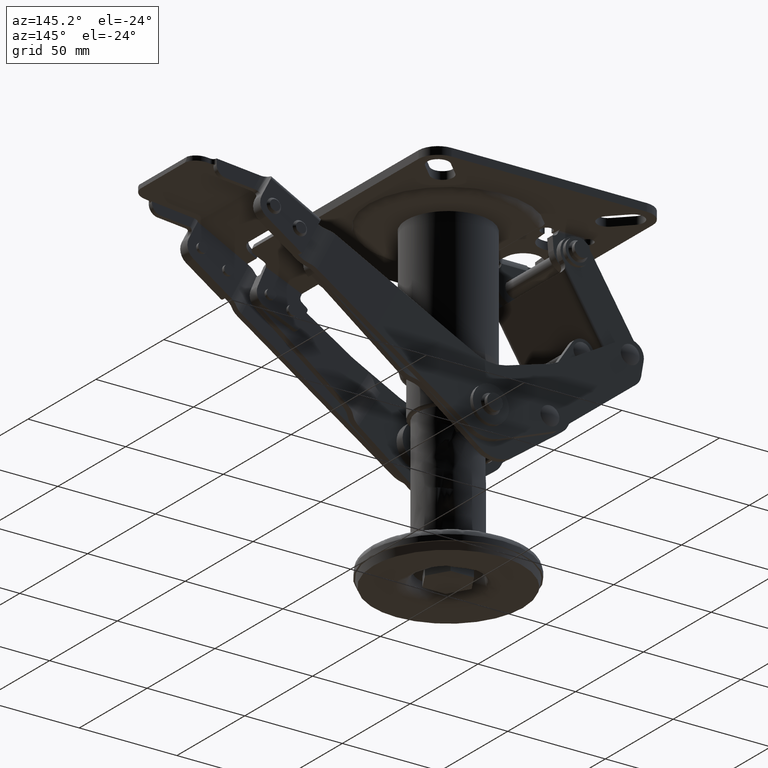
[diagram: clean part render]
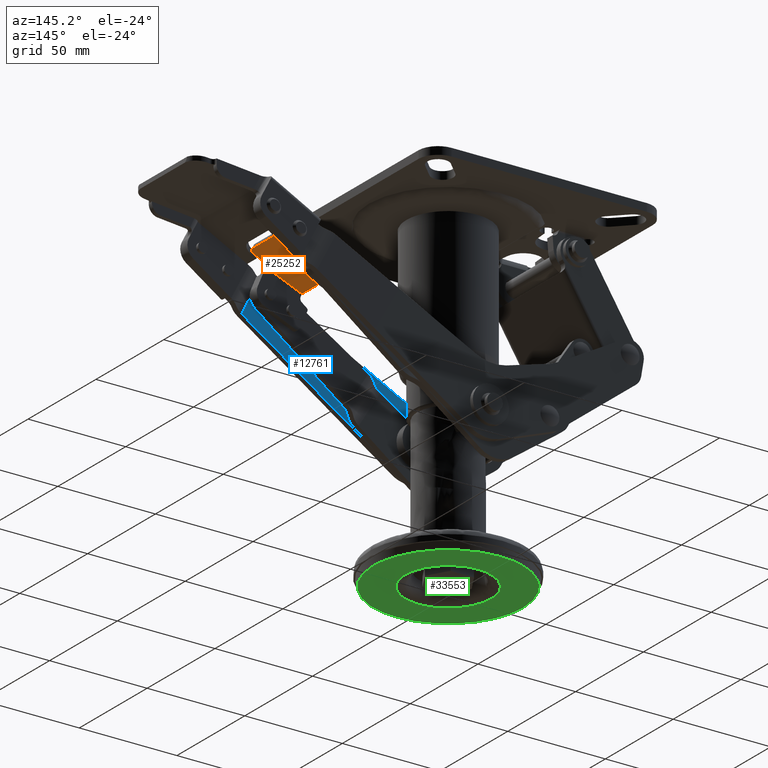
[diagram: same view with three faces highlighted in distinct colors, each labeled with its STEP entity id]
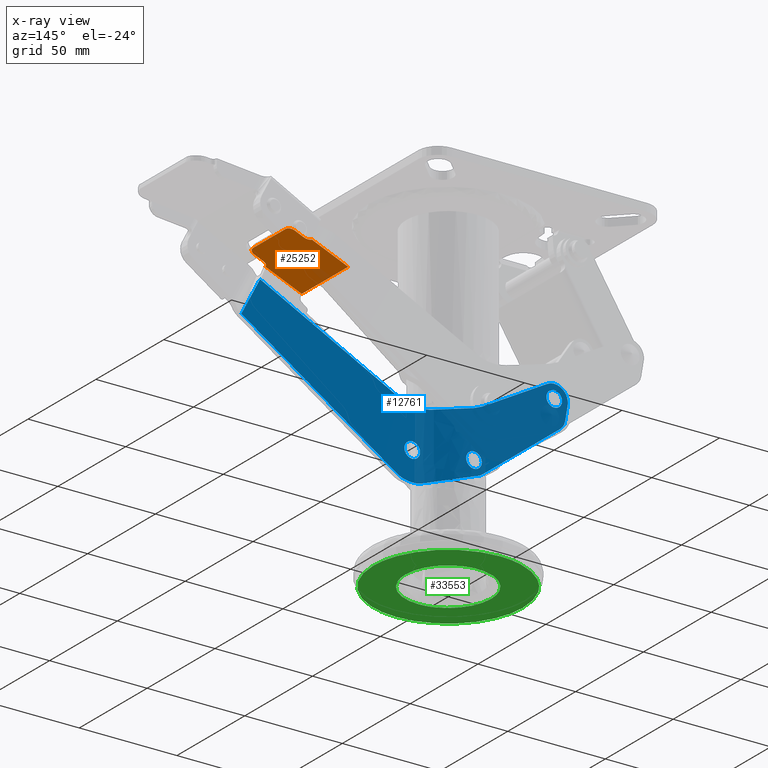
[diagram: x-ray of the same camera — body ghosted, the three highlighted faces saturated]
A machine part, auxiliary view with three faces highlighted in distinct colors.
The next image is the same camera in x-ray (body ghosted, the three faces saturated) — at least one of them is partly hidden behind the body in this view.
Their STEP definitions:

[orange] entity #25252 — the highlighted face is a freeform B-spline surface patch.
#22652=CARTESIAN_POINT('',(97.264095206969799,14.994999999999999,-22.718467740653750));
#22653=VERTEX_POINT('',#22652);
#22659=CARTESIAN_POINT('',(94.487977823076690,17.995000000000001,-23.855645066696098));
#22660=VERTEX_POINT('',#22659);
#22661=CARTESIAN_POINT('',(97.264095206969799,14.994999999999999,-22.718467740653750));
#22662=CARTESIAN_POINT('',(97.059695180966287,14.994979267690180,-22.802195855452581));
#22663=CARTESIAN_POINT('',(96.605435454998556,15.049385279657720,-22.988273671722840));
#22664=CARTESIAN_POINT('',(95.982427573743621,15.299656387463230,-23.243475573709890));
#22665=CARTESIAN_POINT('',(95.360543306367703,15.760651265437950,-23.498217211216119));
#22666=CARTESIAN_POINT('',(94.901467072684525,16.350206380108599,-23.686268007230058));
#22667=CARTESIAN_POINT('',(94.568476835379386,17.136072331092780,-23.822670361775550));
#22668=CARTESIAN_POINT('',(94.487825517130162,17.675915722012121,-23.855707455581221));
#22669=CARTESIAN_POINT('',(94.487977823076690,17.995000000000001,-23.855645066696098));
#22670=B_SPLINE_CURVE_WITH_KNOTS('',3,(#22661,#22662,#22663,#22664,#22665,#22666,#22667,#22668,#22669),.UNSPECIFIED.,.F.,.U.,(4,1,1,1,1,1,4),(0.000000498164373,0.662675685440780,1.472679556159552,2.135384398460633,3.092571371835574,3.755282542639293,4.712507233066354),.UNSPECIFIED.);
#22671=EDGE_CURVE('',#22653,#22660,#22670,.T.);
#22712=CARTESIAN_POINT('',(104.667069302272400,11.994999999999999,-19.685997163112251));
#22713=VERTEX_POINT('',#22712);
#22719=CARTESIAN_POINT('',(101.890951918373400,14.994999999999999,-20.823174489157100));
#22720=VERTEX_POINT('',#22719);
#22721=CARTESIAN_POINT('',(104.667069302272400,11.994999999999999,-19.685997163112251));
#22722=CARTESIAN_POINT('',(104.667353248245010,12.363189055026661,-19.685880850695540));
#22723=CARTESIAN_POINT('',(104.556969416284700,13.001132587181150,-19.731097235130779));
#22724=CARTESIAN_POINT('',(104.192191050063400,13.717103904401680,-19.880520919267479));
#22725=CARTESIAN_POINT('',(103.754271552967400,14.252301647621950,-20.059905308997820));
#22726=CARTESIAN_POINT('',(103.234211721136400,14.658600410887169,-20.272936736406351));
#22727=CARTESIAN_POINT('',(102.572296688395500,14.934434268555570,-20.544076123870688));
#22728=CARTESIAN_POINT('',(102.118070677337200,14.995053305723349,-20.730140129547639));
#22729=CARTESIAN_POINT('',(101.890951918373400,14.994999999999999,-20.823174489157100));
#22730=B_SPLINE_CURVE_WITH_KNOTS('',3,(#22721,#22722,#22723,#22724,#22725,#22726,#22727,#22728,#22729),.UNSPECIFIED.,.F.,.U.,(4,1,1,1,1,1,4),(0.000000498159747,1.104491225460009,1.914493231159970,2.429814584807910,3.239830067400359,3.976189734463318,4.712507233073490),.UNSPECIFIED.);
#22731=EDGE_CURVE('',#22713,#22720,#22730,.T.);
#22752=CARTESIAN_POINT('',(101.890951918373400,14.994999999999999,-20.823174489157100));
#22753=CARTESIAN_POINT('',(97.264095206969799,14.994999999999999,-22.718467740653750));
#22754=QUASI_UNIFORM_CURVE('',1,(#22752,#22753),.UNSPECIFIED.,.F.,.U.);
#22755=EDGE_CURVE('',#22720,#22653,#22754,.T.);
#22910=CARTESIAN_POINT('',(75.980594611312242,17.074999999999999,-31.436800199005930));
#22911=VERTEX_POINT('',#22910);
#22951=CARTESIAN_POINT('',(94.487977823076690,17.074999999999999,-23.855645066696049));
#22952=VERTEX_POINT('',#22951);
#22958=CARTESIAN_POINT('',(75.980594611312242,17.074999999999999,-31.436800199005930));
#22959=CARTESIAN_POINT('',(94.487977823076690,17.074999999999999,-23.855645066696049));
#22960=QUASI_UNIFORM_CURVE('',1,(#22958,#22959),.UNSPECIFIED.,.F.,.U.);
#22961=EDGE_CURVE('',#22911,#22952,#22960,.T.);
#24875=CARTESIAN_POINT('',(94.487977823076690,17.074999999999999,-23.855645066696049));
#24876=CARTESIAN_POINT('',(94.487977823076690,17.995000000000001,-23.855645066696098));
#24877=QUASI_UNIFORM_CURVE('',1,(#24875,#24876),.UNSPECIFIED.,.F.,.U.);
#24878=EDGE_CURVE('',#22952,#22660,#24877,.T.);
#25067=CARTESIAN_POINT('',(94.487977823076690,-17.995000000000001,-23.855645066696098));
#25068=VERTEX_POINT('',#25067);
#25074=CARTESIAN_POINT('',(97.264095206969799,-14.994999999999999,-22.718467740653750));
#25075=VERTEX_POINT('',#25074);
#25076=CARTESIAN_POINT('',(97.264095206969799,-14.994999999999999,-22.718467740653750));
#25077=CARTESIAN_POINT('',(97.059695180966287,-14.994979267690180,-22.802195855452581));
#25078=CARTESIAN_POINT('',(96.605435454998556,-15.049385279657720,-22.988273671722840));
#25079=CARTESIAN_POINT('',(95.982427573743621,-15.299656387463230,-23.243475573709890));
#25080=CARTESIAN_POINT('',(95.360543306367703,-15.760651265437950,-23.498217211216119));
#25081=CARTESIAN_POINT('',(94.901467072684525,-16.350206380108599,-23.686268007230058));
#25082=CARTESIAN_POINT('',(94.568476835379386,-17.136072331092780,-23.822670361775550));
#25083=CARTESIAN_POINT('',(94.487825517130162,-17.675915722012121,-23.855707455581221));
#25084=CARTESIAN_POINT('',(94.487977823076690,-17.995000000000001,-23.855645066696098));
#25085=B_SPLINE_CURVE_WITH_KNOTS('',3,(#25076,#25077,#25078,#25079,#25080,#25081,#25082,#25083,#25084),.UNSPECIFIED.,.F.,.U.,(4,1,1,1,1,1,4),(0.000000498164373,0.662675685440780,1.472679556159552,2.135384398460633,3.092571371835574,3.755282542639293,4.712507233066354),.UNSPECIFIED.);
#25086=EDGE_CURVE('',#25075,#25068,#25085,.T.);
#25126=CARTESIAN_POINT('',(101.890951918373400,-14.994999999999999,-20.823174489157100));
#25127=VERTEX_POINT('',#25126);
#25133=CARTESIAN_POINT('',(104.667069302272400,-11.994999999999999,-19.685997163112251));
#25134=VERTEX_POINT('',#25133);
#25135=CARTESIAN_POINT('',(104.667069302272400,-11.994999999999999,-19.685997163112251));
#25136=CARTESIAN_POINT('',(104.667353248245010,-12.363189055026661,-19.685880850695540));
#25137=CARTESIAN_POINT('',(104.556969416284700,-13.001132587181150,-19.731097235130779));
#25138=CARTESIAN_POINT('',(104.192191050063400,-13.717103904401680,-19.880520919267479));
#25139=CARTESIAN_POINT('',(103.754271552967400,-14.252301647621950,-20.059905308997820));
#25140=CARTESIAN_POINT('',(103.234211721136400,-14.658600410887169,-20.272936736406351));
#25141=CARTESIAN_POINT('',(102.572296688395500,-14.934434268555570,-20.544076123870688));
#25142=CARTESIAN_POINT('',(102.118070677337200,-14.995053305723349,-20.730140129547639));
#25143=CARTESIAN_POINT('',(101.890951918373400,-14.994999999999999,-20.823174489157100));
#25144=B_SPLINE_CURVE_WITH_KNOTS('',3,(#25135,#25136,#25137,#25138,#25139,#25140,#25141,#25142,#25143),.UNSPECIFIED.,.F.,.U.,(4,1,1,1,1,1,4),(0.000000498159747,1.104491225460009,1.914493231159970,2.429814584807910,3.239830067400359,3.976189734463318,4.712507233073490),.UNSPECIFIED.);
#25145=EDGE_CURVE('',#25134,#25127,#25144,.T.);
#25166=CARTESIAN_POINT('',(101.890951918373400,-14.994999999999999,-20.823174489157100));
#25167=CARTESIAN_POINT('',(97.264095206969799,-14.994999999999999,-22.718467740653750));
#25168=QUASI_UNIFORM_CURVE('',1,(#25166,#25167),.UNSPECIFIED.,.F.,.U.);
#25169=EDGE_CURVE('',#25127,#25075,#25168,.T.);
#25208=CARTESIAN_POINT('',(104.667069302272400,11.994999999999999,-19.685997163112251));
#25209=CARTESIAN_POINT('',(104.667069302272400,-11.994999999999999,-19.685997163112251));
#25210=QUASI_UNIFORM_CURVE('',1,(#25208,#25209),.UNSPECIFIED.,.F.,.U.);
#25211=EDGE_CURVE('',#22713,#25134,#25210,.T.);
#25217=CARTESIAN_POINT('',(106.099958221398000,-19.792701443789500,-19.099044752878889));
#25218=CARTESIAN_POINT('',(74.547702357984790,-19.792701443789500,-32.023753975024107));
#25219=CARTESIAN_POINT('',(106.099958221398000,19.792701443789500,-19.099044752878889));
#25220=CARTESIAN_POINT('',(74.547702357984790,19.792701443789500,-32.023753975024107));
#25221=B_SPLINE_SURFACE_WITH_KNOTS('',1,1,((#25217,#25219),(#25218,#25220)),.UNSPECIFIED.,.F.,.F.,.U.,(2,2),(2,2),(0.0,34.096817425491437),(0.0,39.585402887579008),.UNSPECIFIED.);
#25222=ORIENTED_EDGE('',*,*,#25211,.T.);
#25223=ORIENTED_EDGE('',*,*,#25145,.T.);
#25224=ORIENTED_EDGE('',*,*,#25169,.T.);
#25225=ORIENTED_EDGE('',*,*,#25086,.T.);
#25226=CARTESIAN_POINT('',(94.487977823076690,-17.074999999999999,-23.855645066696049));
#25227=VERTEX_POINT('',#25226);
#25228=CARTESIAN_POINT('',(94.487977823076690,-17.074999999999999,-23.855645066696049));
#25229=CARTESIAN_POINT('',(94.487977823076690,-17.995000000000001,-23.855645066696098));
#25230=QUASI_UNIFORM_CURVE('',1,(#25228,#25229),.UNSPECIFIED.,.F.,.U.);
#25231=EDGE_CURVE('',#25227,#25068,#25230,.T.);
#25232=ORIENTED_EDGE('',*,*,#25231,.F.);
#25233=CARTESIAN_POINT('',(75.980594611312242,-17.074999999999999,-31.436800199005930));
#25234=VERTEX_POINT('',#25233);
#25235=CARTESIAN_POINT('',(75.980594611312242,-17.074999999999999,-31.436800199005930));
#25236=CARTESIAN_POINT('',(94.487977823076690,-17.074999999999999,-23.855645066696049));
#25237=QUASI_UNIFORM_CURVE('',1,(#25235,#25236),.UNSPECIFIED.,.F.,.U.);
#25238=EDGE_CURVE('',#25234,#25227,#25237,.T.);
#25239=ORIENTED_EDGE('',*,*,#25238,.F.);
#25240=CARTESIAN_POINT('',(75.980594611312242,17.074999999999999,-31.436800199005930));
#25241=CARTESIAN_POINT('',(75.980594611312242,-17.074999999999999,-31.436800199005930));
#25242=QUASI_UNIFORM_CURVE('',1,(#25240,#25241),.UNSPECIFIED.,.F.,.U.);
#25243=EDGE_CURVE('',#22911,#25234,#25242,.T.);
#25244=ORIENTED_EDGE('',*,*,#25243,.F.);
#25245=ORIENTED_EDGE('',*,*,#22961,.T.);
#25246=ORIENTED_EDGE('',*,*,#24878,.T.);
#25247=ORIENTED_EDGE('',*,*,#22671,.F.);
#25248=ORIENTED_EDGE('',*,*,#22755,.F.);
#25249=ORIENTED_EDGE('',*,*,#22731,.F.);
#25250=EDGE_LOOP('',(#25222,#25223,#25224,#25225,#25232,#25239,#25244,#25245,#25246,#25247,#25248,#25249));
#25251=FACE_OUTER_BOUND('',#25250,.T.);
#25252=ADVANCED_FACE('',(#25251),#25221,.T.);

[blue] entity #12761 — the highlighted face is a freeform B-spline surface patch.
#1825=CARTESIAN_POINT('',(-28.766206347659629,-26.500000000000000,-91.208847302878070));
#1826=VERTEX_POINT('',#1825);
#1832=CARTESIAN_POINT('',(-27.619207169565762,-26.500000000000000,-94.012488101669973));
#1833=VERTEX_POINT('',#1832);
#1834=CARTESIAN_POINT('',(-28.766206347659629,-26.500000000000000,-91.208847302878070));
#1835=CARTESIAN_POINT('',(-28.425625737050911,-26.500000000000039,-91.554831019105961));
#1836=CARTESIAN_POINT('',(-27.836564631500028,-26.499999999999901,-92.427347838237296));
#1837=CARTESIAN_POINT('',(-27.618484889424590,-26.500000000000050,-93.462233009890824));
#1838=CARTESIAN_POINT('',(-27.619207169565762,-26.500000000000000,-94.012488101669973));
#1839=B_SPLINE_CURVE_WITH_KNOTS('',3,(#1834,#1835,#1836,#1837,#1838),.UNSPECIFIED.,.F.,.U.,(4,1,4),(0.000000094678687,1.456320263138075,3.106766467448271),.UNSPECIFIED.);
#1840=EDGE_CURVE('',#1826,#1833,#1839,.T.);
#1842=CARTESIAN_POINT('',(-31.619207169563001,-26.500000000000000,-98.012483827771533));
#1843=VERTEX_POINT('',#1842);
#1844=CARTESIAN_POINT('',(-27.619207169565762,-26.500000000000000,-94.012488101669973));
#1845=CARTESIAN_POINT('',(-27.619127664990220,-26.499999999999979,-94.372449042138854));
#1846=CARTESIAN_POINT('',(-27.730187478268260,-26.500000000000011,-95.190628588056583));
#1847=CARTESIAN_POINT('',(-28.255464844478361,-26.500000000000000,-96.301415322119880));
#1848=CARTESIAN_POINT('',(-29.145219870700970,-26.500000000000039,-97.235835978917606));
#1849=CARTESIAN_POINT('',(-30.277655943040681,-26.499999999999691,-97.859046522410111));
#1850=CARTESIAN_POINT('',(-31.161017466523909,-26.500000000000220,-98.012783762733349));
#1851=CARTESIAN_POINT('',(-31.619207169563001,-26.500000000000000,-98.012483827771533));
#1852=B_SPLINE_CURVE_WITH_KNOTS('',3,(#1844,#1845,#1846,#1847,#1848,#1849,#1850,#1851),.UNSPECIFIED.,.F.,.U.,(4,1,1,1,1,4),(0.000000418352396,1.079919872330230,2.454485553052767,3.632546585935487,4.908862546651442,6.283340568467245),.UNSPECIFIED.);
#1853=EDGE_CURVE('',#1833,#1843,#1852,.T.);
#1855=CARTESIAN_POINT('',(-35.619207169560227,-26.500000000000000,-94.012479553874030));
#1856=VERTEX_POINT('',#1855);
#1857=CARTESIAN_POINT('',(-31.619207169563001,-26.500000000000000,-98.012483827771533));
#1858=CARTESIAN_POINT('',(-31.979178706468279,-26.500000000000011,-98.012588500201659));
#1859=CARTESIAN_POINT('',(-32.731835482924510,-26.500000000000028,-97.910271437930447));
#1860=CARTESIAN_POINT('',(-33.729826027571363,-26.499999999999929,-97.467935078459561));
#1861=CARTESIAN_POINT('',(-34.545430605614882,-26.500000000000160,-96.798495545239462));
#1862=CARTESIAN_POINT('',(-35.134689577142893,-26.499999999999929,-96.004000543368093));
#1863=CARTESIAN_POINT('',(-35.525796499622011,-26.499999999999961,-95.059616326568701));
#1864=CARTESIAN_POINT('',(-35.619335533709489,-26.500000000000011,-94.372461469910206));
#1865=CARTESIAN_POINT('',(-35.619207169560227,-26.500000000000000,-94.012479553874030));
#1866=B_SPLINE_CURVE_WITH_KNOTS('',3,(#1857,#1858,#1859,#1860,#1861,#1862,#1863,#1864,#1865),.UNSPECIFIED.,.F.,.U.,(4,1,1,1,1,1,4),(0.000000412508236,1.079920695181849,2.258091253484733,3.239792636255949,4.221593183821381,5.203425104538209,6.283345386266682),.UNSPECIFIED.);
#1867=EDGE_CURVE('',#1843,#1856,#1866,.T.);
#1869=CARTESIAN_POINT('',(-34.422845183937532,-26.500000000000000,-91.159481473962387));
#1870=VERTEX_POINT('',#1869);
#1871=CARTESIAN_POINT('',(-35.619207169560227,-26.500000000000000,-94.012479553874030));
#1872=CARTESIAN_POINT('',(-35.619644264395092,-26.500000000000060,-93.516087100579796));
#1873=CARTESIAN_POINT('',(-35.419497067566347,-26.499999999999950,-92.457604319470619));
#1874=CARTESIAN_POINT('',(-34.824629748915427,-26.500000000000039,-91.553313078742633));
#1875=CARTESIAN_POINT('',(-34.422845183937532,-26.500000000000000,-91.159481473962387));
#1876=B_SPLINE_CURVE_WITH_KNOTS('',3,(#1871,#1872,#1873,#1874,#1875),.UNSPECIFIED.,.F.,.U.,(4,1,4),(0.000000105719107,1.489045353038137,3.176576587440371),.UNSPECIFIED.);
#1877=EDGE_CURVE('',#1856,#1870,#1876,.T.);
#1958=CARTESIAN_POINT('',(-31.619207169563001,-26.500000000000000,-90.012483827772499));
#1959=VERTEX_POINT('',#1958);
#1960=CARTESIAN_POINT('',(-34.422845183937532,-26.500000000000000,-91.159481473962387));
#1961=CARTESIAN_POINT('',(-34.169001716365131,-26.500000000000011,-90.909914695535505));
#1962=CARTESIAN_POINT('',(-33.568032576530896,-26.500000000000021,-90.459563361443614));
#1963=CARTESIAN_POINT('',(-32.590078113962392,-26.499999999999929,-90.086899513160347));
#1964=CARTESIAN_POINT('',(-31.910455185401229,-26.500000000000060,-90.012462984657333));
#1965=CARTESIAN_POINT('',(-31.619207169563001,-26.500000000000000,-90.012483827772499));
#1966=B_SPLINE_CURVE_WITH_KNOTS('',3,(#1960,#1961,#1962,#1963,#1964,#1965),.UNSPECIFIED.,.F.,.U.,(4,1,1,4),(0.000000094580631,1.067953605998455,2.232980530301140,3.106763011628496),.UNSPECIFIED.);
#1967=EDGE_CURVE('',#1870,#1959,#1966,.T.);
#1969=CARTESIAN_POINT('',(-31.619207169563001,-26.500000000000000,-90.012483827772499));
#1970=CARTESIAN_POINT('',(-31.255219179579861,-26.500000000000000,-90.012357223541130));
#1971=CARTESIAN_POINT('',(-30.560429048606689,-26.500000000000000,-90.107979363193891));
#1972=CARTESIAN_POINT('',(-29.576418085117790,-26.500000000000039,-90.520588584073096));
#1973=CARTESIAN_POINT('',(-29.021249155480302,-26.500000000000021,-90.949161103259314));
#1974=CARTESIAN_POINT('',(-28.766206347659629,-26.500000000000000,-91.208847302878070));
#1975=B_SPLINE_CURVE_WITH_KNOTS('',3,(#1969,#1970,#1971,#1972,#1973,#1974),.UNSPECIFIED.,.F.,.U.,(4,1,1,4),(0.000000105614514,1.091953482553900,2.084626625093381,3.176580001917617),.UNSPECIFIED.);
#1976=EDGE_CURVE('',#1959,#1826,#1975,.T.);
#2004=CARTESIAN_POINT('',(-75.592776552613714,-26.500000000706422,-58.192644713061341));
#2005=VERTEX_POINT('',#2004);
#2006=CARTESIAN_POINT('',(-76.739775733253339,-26.500000000000000,-55.389003911678813));
#2007=VERTEX_POINT('',#2006);
#2008=CARTESIAN_POINT('',(-75.592776552613714,-26.500000000706422,-58.192644713061341));
#2009=CARTESIAN_POINT('',(-75.887853034049812,-26.500000000630848,-57.892720886147629));
#2010=CARTESIAN_POINT('',(-76.286660951649637,-26.500000000489589,-57.332065160369233));
#2011=CARTESIAN_POINT('',(-76.657143160944656,-26.500000000244619,-56.359785083747610));
#2012=CARTESIAN_POINT('',(-76.739879471099798,-26.500000000089710,-55.744990534917150));
#2013=CARTESIAN_POINT('',(-76.739775733253339,-26.500000000000000,-55.389003911678813));
#2014=B_SPLINE_CURVE_WITH_KNOTS('',3,(#2008,#2009,#2010,#2011,#2012,#2013),.UNSPECIFIED.,.F.,.U.,(4,1,1,4),(0.000000094680610,1.262150513280998,2.038811770494700,3.106766471080650),.UNSPECIFIED.);
#2015=EDGE_CURVE('',#2005,#2007,#2014,.T.);
#2017=CARTESIAN_POINT('',(-72.739775733256096,-26.500000000000000,-51.389008185577261));
#2018=VERTEX_POINT('',#2017);
#2019=CARTESIAN_POINT('',(-76.739775733253339,-26.500000000000000,-55.389003911678813));
#2020=CARTESIAN_POINT('',(-76.740261583381809,-26.500000000000000,-54.865327915940057));
#2021=CARTESIAN_POINT('',(-76.563757836333252,-26.500000000000011,-53.982193230830383));
#2022=CARTESIAN_POINT('',(-75.948321676737123,-26.500000000000000,-52.926518010748303));
#2023=CARTESIAN_POINT('',(-75.318788981612883,-26.499999999999950,-52.297094746450860));
#2024=CARTESIAN_POINT('',(-74.609392439605500,-26.500000000000149,-51.823081794141068));
#2025=CARTESIAN_POINT('',(-73.786923429317582,-26.499999999999812,-51.482412497561441));
#2026=CARTESIAN_POINT('',(-73.099754624774064,-26.499999999999961,-51.388881337959383));
#2027=CARTESIAN_POINT('',(-72.739775733256096,-26.500000000000000,-51.389008185577261));
#2028=B_SPLINE_CURVE_WITH_KNOTS('',3,(#2019,#2020,#2021,#2022,#2023,#2024,#2025,#2026,#2027),.UNSPECIFIED.,.F.,.U.,(4,1,1,1,1,1,4),(0.000000418341539,1.570835456219200,2.650794408622774,3.632546585929382,4.221589945621111,5.203421113541586,6.283340568467391),.UNSPECIFIED.);
#2029=EDGE_CURVE('',#2007,#2018,#2028,.T.);
#2031=CARTESIAN_POINT('',(-68.739775733258853,-26.500000000000000,-55.389012459474749));
#2032=VERTEX_POINT('',#2031);
#2033=CARTESIAN_POINT('',(-72.739775733256096,-26.500000000000000,-51.389008185577261));
#2034=CARTESIAN_POINT('',(-72.216121368080579,-26.500000000000000,-51.388466114660950));
#2035=CARTESIAN_POINT('',(-71.267444295495295,-26.500000000000028,-51.578087619832907));
#2036=CARTESIAN_POINT('',(-70.054048051194599,-26.500000000000050,-52.325637970904097));
#2037=CARTESIAN_POINT('',(-69.274582802408432,-26.499999999999879,-53.275578274224827));
#2038=CARTESIAN_POINT('',(-68.833208054148628,-26.499999999999929,-54.341884293158152));
#2039=CARTESIAN_POINT('',(-68.739647134855815,-26.500000000000082,-55.029034163310669));
#2040=CARTESIAN_POINT('',(-68.739775733258853,-26.500000000000000,-55.389012459474749));
#2041=B_SPLINE_CURVE_WITH_KNOTS('',3,(#2033,#2034,#2035,#2036,#2037,#2038,#2039,#2040),.UNSPECIFIED.,.F.,.U.,(4,1,1,1,1,4),(0.000000412496535,1.570836655592872,2.847214610808964,4.221593183819590,5.203425104537856,6.283345386266730),.UNSPECIFIED.);
#2042=EDGE_CURVE('',#2018,#2032,#2041,.T.);
#2044=CARTESIAN_POINT('',(-69.936137716291412,-26.499999999300471,-58.242010536841100));
#2045=VERTEX_POINT('',#2044);
#2046=CARTESIAN_POINT('',(-68.739775733258853,-26.500000000000000,-55.389012459474749));
#2047=CARTESIAN_POINT('',(-68.739060130839462,-26.499999999862109,-55.951626873948207));
#2048=CARTESIAN_POINT('',(-68.967104456846229,-26.499999999602529,-57.009738590167387));
#2049=CARTESIAN_POINT('',(-69.581777652922881,-26.499999999385761,-57.894396687125379));
#2050=CARTESIAN_POINT('',(-69.936137716291412,-26.499999999300471,-58.242010536841100));
#2051=B_SPLINE_CURVE_WITH_KNOTS('',3,(#2046,#2047,#2048,#2049,#2050),.UNSPECIFIED.,.F.,.U.,(4,1,4),(0.000000105719514,1.687531338189897,3.176576583808684),.UNSPECIFIED.);
#2052=EDGE_CURVE('',#2032,#2045,#2051,.T.);
#2132=CARTESIAN_POINT('',(-72.739775733256096,-26.500000000000000,-59.389008185576337));
#2133=VERTEX_POINT('',#2132);
#2134=CARTESIAN_POINT('',(-72.739775733256096,-26.500000000000000,-59.389008185576337));
#2135=CARTESIAN_POINT('',(-73.302386783862033,-26.500000000139298,-59.389716908285934));
#2136=CARTESIAN_POINT('',(-74.360507924756888,-26.500000000401300,-59.161686966348427));
#2137=CARTESIAN_POINT('',(-75.245161651513399,-26.500000000620339,-58.547002015219938));
#2138=CARTESIAN_POINT('',(-75.592776552613714,-26.500000000706422,-58.192644713061341));
#2139=B_SPLINE_CURVE_WITH_KNOTS('',3,(#2134,#2135,#2136,#2137,#2138),.UNSPECIFIED.,.F.,.U.,(4,1,4),(0.000000105616872,1.687533151992051,3.176579998285250),.UNSPECIFIED.);
#2140=EDGE_CURVE('',#2133,#2005,#2139,.T.);
#2163=CARTESIAN_POINT('',(-69.936137716291412,-26.499999999300471,-58.242010536841100));
#2164=CARTESIAN_POINT('',(-70.282125699300565,-26.499999999386791,-58.582574515396907));
#2165=CARTESIAN_POINT('',(-71.154615090446782,-26.499999999604562,-59.171726533297580));
#2166=CARTESIAN_POINT('',(-72.189536471332303,-26.499999999862709,-59.389663467657122));
#2167=CARTESIAN_POINT('',(-72.739775733256096,-26.500000000000000,-59.389008185576337));
#2168=B_SPLINE_CURVE_WITH_KNOTS('',3,(#2163,#2164,#2165,#2166,#2167),.UNSPECIFIED.,.F.,.U.,(4,1,4),(0.000000094581190,1.456318644791350,3.106763015260222),.UNSPECIFIED.);
#2169=EDGE_CURVE('',#2045,#2133,#2168,.T.);
#2413=CARTESIAN_POINT('',(2.853000214058184,-26.500000000000000,-94.596358088353696));
#2414=VERTEX_POINT('',#2413);
#2420=CARTESIAN_POINT('',(3.999996999997717,-26.500000000000000,-97.399989726105218));
#2421=VERTEX_POINT('',#2420);
#2422=CARTESIAN_POINT('',(3.999996999997717,-26.500000000000000,-97.399989726105218));
#2423=CARTESIAN_POINT('',(4.000037528699167,-26.500000000000021,-97.108737791270741));
#2424=CARTESIAN_POINT('',(3.932569942595097,-26.499999999999950,-96.493891533029625));
#2425=CARTESIAN_POINT('',(3.584989191539200,-26.500000000000071,-95.510289013086492));
#2426=CARTESIAN_POINT('',(3.148017209825256,-26.499999999999940,-94.896306050113367));
#2427=CARTESIAN_POINT('',(2.853000214058184,-26.500000000000000,-94.596358088353696));
#2428=B_SPLINE_CURVE_WITH_KNOTS('',3,(#2422,#2423,#2424,#2425,#2426,#2427),.UNSPECIFIED.,.F.,.U.,(4,1,1,4),(0.000000094680916,0.873780718499388,1.844610077153936,3.106756407346604),.UNSPECIFIED.);
#2429=EDGE_CURVE('',#2421,#2414,#2428,.T.);
#2431=CARTESIAN_POINT('',(0.0,-26.500000000000000,-101.399991000000000));
#2432=VERTEX_POINT('',#2431);
#2433=CARTESIAN_POINT('',(0.0,-26.500000000000000,-101.399991000000000));
#2434=CARTESIAN_POINT('',(0.523692395154120,-26.500000000000021,-101.400576184380700));
#2435=CARTESIAN_POINT('',(1.406812880384081,-26.499999999999961,-101.223895598413190));
#2436=CARTESIAN_POINT('',(2.405362026140882,-26.500000000000060,-100.641787239932200));
#2437=CARTESIAN_POINT('',(3.048312999275747,-26.499999999999929,-100.029536042209000));
#2438=CARTESIAN_POINT('',(3.578657807053631,-26.500000000000050,-99.276837717217248));
#2439=CARTESIAN_POINT('',(3.923862503700090,-26.499999999999861,-98.381767472705022));
#2440=CARTESIAN_POINT('',(4.000026709813680,-26.500000000000011,-97.694505655239325));
#2441=CARTESIAN_POINT('',(3.999996999997717,-26.500000000000000,-97.399989726105218));
#2442=B_SPLINE_CURVE_WITH_KNOTS('',3,(#2433,#2434,#2435,#2436,#2437,#2438,#2439,#2440,#2441),.UNSPECIFIED.,.F.,.U.,(4,1,1,1,1,1,4),(0.000000412506493,1.570835477472371,2.650794443364687,3.436128614565740,4.221590017626973,5.399759691581598,6.283340673758381),.UNSPECIFIED.);
#2443=EDGE_CURVE('',#2432,#2421,#2442,.T.);
#2445=CARTESIAN_POINT('',(-3.999996999997717,-26.500000000000000,-97.399998273894738));
#2446=VERTEX_POINT('',#2445);
#2447=CARTESIAN_POINT('',(-3.999996999997717,-26.500000000000000,-97.399998273894738));
#2448=CARTESIAN_POINT('',(-4.000124617929980,-26.499999999999950,-97.759978009956612));
#2449=CARTESIAN_POINT('',(-3.906564748223784,-26.500000000000089,-98.447121806942789));
#2450=CARTESIAN_POINT('',(-3.465188971929435,-26.500000000000000,-99.513429638202794));
#2451=CARTESIAN_POINT('',(-2.685730121712000,-26.499999999999918,-100.463369255972490));
#2452=CARTESIAN_POINT('',(-1.472323619706103,-26.500000000000089,-101.210913017865100));
#2453=CARTESIAN_POINT('',(-0.523656887202373,-26.499999999999989,-101.400532588877500));
#2454=CARTESIAN_POINT('',(0.0,-26.500000000000000,-101.399991000000000));
#2455=B_SPLINE_CURVE_WITH_KNOTS('',3,(#2447,#2448,#2449,#2450,#2451,#2452,#2453,#2454),.UNSPECIFIED.,.F.,.U.,(4,1,1,1,1,4),(0.000000418342730,1.079919062382007,2.061749494164688,3.436125975266754,4.712501994343722,6.283335855962778),.UNSPECIFIED.);
#2456=EDGE_CURVE('',#2446,#2432,#2455,.T.);
#2458=CARTESIAN_POINT('',(-2.803634422108144,-26.500000000000000,-94.546995317789111));
#2459=VERTEX_POINT('',#2458);
#2460=CARTESIAN_POINT('',(-2.803634422108144,-26.500000000000000,-94.546995317789111));
#2461=CARTESIAN_POINT('',(-3.158012798127994,-26.500000000000071,-94.894602003462026));
#2462=CARTESIAN_POINT('',(-3.772586470027117,-26.499999999999869,-95.779296537812016));
#2463=CARTESIAN_POINT('',(-4.000785939110791,-26.500000000000121,-96.837364971866037));
#2464=CARTESIAN_POINT('',(-3.999996999997717,-26.500000000000000,-97.399998273894738));
#2465=B_SPLINE_CURVE_WITH_KNOTS('',3,(#2460,#2461,#2462,#2463,#2464),.UNSPECIFIED.,.F.,.U.,(4,1,4),(0.000000105722521,1.489047840563404,3.176581893788483),.UNSPECIFIED.);
#2466=EDGE_CURVE('',#2459,#2446,#2465,.T.);
#2549=CARTESIAN_POINT('',(0.0,-26.500000000000000,-93.399996999999999));
#2550=VERTEX_POINT('',#2549);
#2551=CARTESIAN_POINT('',(0.0,-26.500000000000000,-93.399996999999999));
#2552=CARTESIAN_POINT('',(-0.550255164737202,-26.499999999999950,-93.399275806579183));
#2553=CARTESIAN_POINT('',(-1.585132918516385,-26.500000000000089,-93.617354137996159));
#2554=CARTESIAN_POINT('',(-2.457655248837352,-26.499999999999961,-94.206417108744986));
#2555=CARTESIAN_POINT('',(-2.803634422108144,-26.500000000000000,-94.546995317789111));
#2556=B_SPLINE_CURVE_WITH_KNOTS('',3,(#2551,#2552,#2553,#2554,#2555),.UNSPECIFIED.,.F.,.U.,(4,1,4),(0.000000094579580,1.650442790486460,3.106759863082636),.UNSPECIFIED.);
#2557=EDGE_CURVE('',#2550,#2459,#2556,.T.);
#2559=CARTESIAN_POINT('',(2.853000214058184,-26.500000000000000,-94.596358088353696));
#2560=CARTESIAN_POINT('',(2.459168647921223,-26.500000000000011,-94.194574044480788));
#2561=CARTESIAN_POINT('',(1.554876533335513,-26.500000000000021,-93.599705690930975));
#2562=CARTESIAN_POINT('',(0.496392373455567,-26.499999999999940,-93.399559450695762));
#2563=CARTESIAN_POINT('',(0.0,-26.500000000000000,-93.399996999999999));
#2564=B_SPLINE_CURVE_WITH_KNOTS('',3,(#2559,#2560,#2561,#2562,#2563),.UNSPECIFIED.,.F.,.U.,(4,1,4),(0.000000105616516,1.687532345006936,3.176578479232563),.UNSPECIFIED.);
#2565=EDGE_CURVE('',#2414,#2550,#2564,.T.);
#11936=CARTESIAN_POINT('',(77.957507396601201,-26.500000000000000,-38.540599394977498));
#11937=VERTEX_POINT('',#11936);
#11962=CARTESIAN_POINT('',(87.513095883884702,-26.500000000000000,-56.838427067744597));
#11963=VERTEX_POINT('',#11962);
#11971=CARTESIAN_POINT('',(77.957507396601201,-26.500000000000000,-38.540599394977498));
#11972=CARTESIAN_POINT('',(87.513095883884702,-26.500000000000000,-56.838427067744597));
#11973=QUASI_UNIFORM_CURVE('',1,(#11971,#11972),.UNSPECIFIED.,.F.,.U.);
#11974=EDGE_CURVE('',#11937,#11963,#11973,.T.);
#12266=CARTESIAN_POINT('',(-35.916082887474403,-26.500000000000000,-99.538508540494206));
#12267=VERTEX_POINT('',#12266);
#12273=CARTESIAN_POINT('',(-34.091929999999998,-26.500000000000000,-100.561329000000000));
#12274=VERTEX_POINT('',#12273);
#12275=CARTESIAN_POINT('',(-35.916082887474403,-26.500000000000000,-99.538508540494206));
#12276=CARTESIAN_POINT('',(-35.363823069482663,-26.499999999999979,-99.968231902416505));
#12277=CARTESIAN_POINT('',(-34.746659379672337,-26.500000000000050,-100.314361615611200));
#12278=CARTESIAN_POINT('',(-34.091929999999998,-26.500000000000000,-100.561329000000000));
#12279=B_SPLINE_CURVE_WITH_KNOTS('',3,(#12275,#12276,#12277,#12278),.UNSPECIFIED.,.F.,.U.,(4,4),(9.783498E-009,2.099231881581437),.UNSPECIFIED.);
#12280=EDGE_CURVE('',#12267,#12274,#12279,.T.);
#12302=CARTESIAN_POINT('',(-75.758461491749003,-26.500000000000000,-68.477507018356604));
#12303=VERTEX_POINT('',#12302);
#12309=CARTESIAN_POINT('',(-75.758461491749003,-26.500000000000000,-68.477507018356604));
#12310=CARTESIAN_POINT('',(-35.916082887474403,-26.500000000000000,-99.538508540494206));
#12311=QUASI_UNIFORM_CURVE('',1,(#12309,#12310),.UNSPECIFIED.,.F.,.U.);
#12312=EDGE_CURVE('',#12303,#12267,#12311,.T.);
#12343=CARTESIAN_POINT('',(-78.355420019964285,-26.500000000000000,-64.129584882474305));
#12344=VERTEX_POINT('',#12343);
#12350=CARTESIAN_POINT('',(-78.355420019964285,-26.500000000000000,-64.129584882474305));
#12351=CARTESIAN_POINT('',(-78.274117603581630,-26.499999999999979,-64.608543822587706));
#12352=CARTESIAN_POINT('',(-77.996653479724060,-26.500000000000050,-65.601685577624778));
#12353=CARTESIAN_POINT('',(-77.175120469758753,-26.499999999999929,-67.134305108734296));
#12354=CARTESIAN_POINT('',(-76.312045585348557,-26.500000000000089,-68.046238688501845));
#12355=CARTESIAN_POINT('',(-75.758461491749003,-26.500000000000000,-68.477507018356604));
#12356=B_SPLINE_CURVE_WITH_KNOTS('',3,(#12350,#12351,#12352,#12353,#12354,#12355),.UNSPECIFIED.,.F.,.U.,(4,1,1,4),(0.000000030997393,1.457462923863167,3.076865071732427,5.182090099489219),.UNSPECIFIED.);
#12357=EDGE_CURVE('',#12344,#12303,#12356,.T.);
#12375=CARTESIAN_POINT('',(-79.641049957649400,-26.500000000000000,-56.561333249309712));
#12376=VERTEX_POINT('',#12375);
#12382=CARTESIAN_POINT('',(-79.641049957649400,-26.500000000000000,-56.561333249309712));
#12383=CARTESIAN_POINT('',(-78.355420019964285,-26.500000000000000,-64.129584882474305));
#12384=QUASI_UNIFORM_CURVE('',1,(#12382,#12383),.UNSPECIFIED.,.F.,.U.);
#12385=EDGE_CURVE('',#12376,#12344,#12384,.T.);
#12427=CARTESIAN_POINT('',(-69.257081732898300,-26.500000000000000,-49.316879614807512));
#12428=VERTEX_POINT('',#12427);
#12434=CARTESIAN_POINT('',(-69.257081732898300,-26.500000000000000,-49.316879614807512));
#12435=CARTESIAN_POINT('',(-69.685856417715783,-26.499999999999972,-49.070897197625627));
#12436=CARTESIAN_POINT('',(-70.709533303351947,-26.500000000000021,-48.620034715142367));
#12437=CARTESIAN_POINT('',(-72.223196978213338,-26.500000000000039,-48.350091256531329));
#12438=CARTESIAN_POINT('',(-73.875909360210201,-26.500000000000000,-48.423208671267702));
#12439=CARTESIAN_POINT('',(-75.560544040577952,-26.499999999999829,-48.879863154728547));
#12440=CARTESIAN_POINT('',(-77.054495527148589,-26.500000000000341,-49.790626780350351));
#12441=CARTESIAN_POINT('',(-78.282306683935857,-26.499999999999812,-51.019277859311593));
#12442=CARTESIAN_POINT('',(-79.082630568896604,-26.499999999999829,-52.283248983629129));
#12443=CARTESIAN_POINT('',(-79.544989012909042,-26.500000000000099,-53.612458080835822));
#12444=CARTESIAN_POINT('',(-79.778639864084482,-26.499999999999950,-54.997014530762840));
#12445=CARTESIAN_POINT('',(-79.744755429266363,-26.500000000000011,-55.952172389855598));
#12446=CARTESIAN_POINT('',(-79.641049957649400,-26.500000000000000,-56.561333249309712));
#12447=B_SPLINE_CURVE_WITH_KNOTS('',3,(#12434,#12435,#12436,#12437,#12438,#12439,#12440,#12441,#12442,#12443,#12444,#12445,#12446),.UNSPECIFIED.,.F.,.U.,(4,1,1,1,1,1,1,1,1,1,4),(0.000000583188646,1.483008435530474,3.336831998400857,4.572717058152390,6.426566880837481,8.527415984754782,9.763241099960744,11.617101718654650,12.976600342819170,13.965326359453780,15.819044798083610),.UNSPECIFIED.);
#12448=EDGE_CURVE('',#12428,#12376,#12447,.T.);
#12466=CARTESIAN_POINT('',(-36.121780000000001,-26.500000000000000,-68.148086999999990));
#12467=VERTEX_POINT('',#12466);
#12473=CARTESIAN_POINT('',(-36.121780000000001,-26.500000000000000,-68.148086999999990));
#12474=CARTESIAN_POINT('',(-69.257081732898300,-26.500000000000000,-49.316879614807512));
#12475=QUASI_UNIFORM_CURVE('',1,(#12473,#12474),.UNSPECIFIED.,.F.,.U.);
#12476=EDGE_CURVE('',#12467,#12428,#12475,.T.);
#12505=CARTESIAN_POINT('',(-31.590869999665749,-26.500000000000000,-70.060631000096890));
#12506=VERTEX_POINT('',#12505);
#12512=CARTESIAN_POINT('',(-36.121780000000001,-26.500000000000000,-68.148086999999990));
#12513=CARTESIAN_POINT('',(-34.693352550260578,-26.500000000000011,-68.960184628512678));
#12514=CARTESIAN_POINT('',(-33.169124032190510,-26.500000000000060,-69.603479804960671));
#12515=CARTESIAN_POINT('',(-31.590869999665749,-26.500000000000000,-70.060631000096890));
#12516=B_SPLINE_CURVE_WITH_KNOTS('',3,(#12512,#12513,#12514,#12515),.UNSPECIFIED.,.F.,.U.,(4,4),(3.549657E-009,4.929346446035098),.UNSPECIFIED.);
#12517=EDGE_CURVE('',#12467,#12506,#12516,.T.);
#12535=CARTESIAN_POINT('',(-9.168170000000000,-26.500000000000000,-76.558491000000004));
#12536=VERTEX_POINT('',#12535);
#12542=CARTESIAN_POINT('',(-9.168170000000000,-26.500000000000000,-76.558491000000004));
#12543=CARTESIAN_POINT('',(-31.590869999665749,-26.500000000000000,-70.060631000096890));
#12544=QUASI_UNIFORM_CURVE('',1,(#12542,#12543),.UNSPECIFIED.,.F.,.U.);
#12545=EDGE_CURVE('',#12536,#12506,#12544,.T.);
#12576=CARTESIAN_POINT('',(6.211179989816660,-26.500000000000000,-75.099251005189103));
#12577=VERTEX_POINT('',#12576);
#12583=CARTESIAN_POINT('',(-9.168170000000000,-26.500000000000000,-76.558491000000004));
#12584=CARTESIAN_POINT('',(-7.348090428346723,-26.500000000000099,-77.086638772073684));
#12585=CARTESIAN_POINT('',(-3.975362554933461,-26.499999999999829,-77.583788090999533));
#12586=CARTESIAN_POINT('',(1.303881886468630,-26.500000000000281,-77.083034144475448));
#12587=CARTESIAN_POINT('',(4.522901323735121,-26.499999999999758,-75.960212134050010));
#12588=CARTESIAN_POINT('',(6.211179989816660,-26.500000000000000,-75.099251005189103));
#12589=B_SPLINE_CURVE_WITH_KNOTS('',3,(#12583,#12584,#12585,#12586,#12587,#12588),.UNSPECIFIED.,.F.,.U.,(4,1,1,4),(0.000000040835566,5.685312748856438,10.134631033500041,15.819943741520580),.UNSPECIFIED.);
#12590=EDGE_CURVE('',#12536,#12577,#12589,.T.);
#12617=CARTESIAN_POINT('',(8.347470000000000,-26.500000000000000,-109.862774000000000));
#12618=VERTEX_POINT('',#12617);
#12624=CARTESIAN_POINT('',(8.347470000000000,-26.500000000000000,-109.862774000000000));
#12625=CARTESIAN_POINT('',(87.513095883884702,-26.500000000000000,-56.838427067744597));
#12626=QUASI_UNIFORM_CURVE('',1,(#12624,#12625),.UNSPECIFIED.,.F.,.U.);
#12627=EDGE_CURVE('',#12618,#11963,#12626,.T.);
#12670=CARTESIAN_POINT('',(-5.298955763659250,-26.500000000000000,-111.432976446602790));
#12671=VERTEX_POINT('',#12670);
#12677=CARTESIAN_POINT('',(-5.298955763659250,-26.500000000000000,-111.432976446602790));
#12678=CARTESIAN_POINT('',(-4.395194161132328,-26.500000000000039,-111.774360565509000));
#12679=CARTESIAN_POINT('',(-2.737621955716518,-26.499999999999940,-112.222940814209300));
#12680=CARTESIAN_POINT('',(0.155964160594752,-26.500000000000039,-112.494625113411300));
#12681=CARTESIAN_POINT('',(2.985741460098053,-26.499999999999950,-112.211485565724800));
#12682=CARTESIAN_POINT('',(5.901000062983477,-26.500000000000171,-111.284627035222400));
#12683=CARTESIAN_POINT('',(7.544857498722709,-26.499999999999680,-110.400493330548100));
#12684=CARTESIAN_POINT('',(8.347470000000000,-26.500000000000000,-109.862774000000000));
#12685=B_SPLINE_CURVE_WITH_KNOTS('',3,(#12677,#12678,#12679,#12680,#12681,#12682,#12683,#12684),.UNSPECIFIED.,.F.,.U.,(4,1,1,1,1,4),(0.000000056120701,2.898272012738186,5.127741399919144,8.694808705148139,11.370183441063180,14.268455397681130),.UNSPECIFIED.);
#12686=EDGE_CURVE('',#12671,#12618,#12685,.T.);
#12703=CARTESIAN_POINT('',(-34.091929999999998,-26.500000000000000,-100.561329000000000));
#12704=CARTESIAN_POINT('',(-5.298955763659250,-26.500000000000000,-111.432976446602790));
#12705=QUASI_UNIFORM_CURVE('',1,(#12703,#12704),.UNSPECIFIED.,.F.,.U.);
#12706=EDGE_CURVE('',#12274,#12671,#12705,.T.);
#12712=CARTESIAN_POINT('',(-88.093033088683910,-26.500000000000000,-34.851372403569769));
#12713=CARTESIAN_POINT('',(95.867332302652656,-26.500000000000000,-34.851372403569769));
#12714=CARTESIAN_POINT('',(-88.093033088683910,-26.500000000000000,-116.088229459590710));
#12715=CARTESIAN_POINT('',(95.867332302652656,-26.500000000000000,-116.088229459590710));
#12716=B_SPLINE_SURFACE_WITH_KNOTS('',1,1,((#12712,#12714),(#12713,#12715)),.UNSPECIFIED.,.F.,.F.,.U.,(2,2),(2,2),(0.0,183.960365391336610),(0.0,81.236857056020966),.UNSPECIFIED.);
#12717=CARTESIAN_POINT('',(77.957507396601201,-26.500000000000000,-38.540599394977498));
#12718=CARTESIAN_POINT('',(6.211179989816660,-26.500000000000000,-75.099251005189103));
#12719=QUASI_UNIFORM_CURVE('',1,(#12717,#12718),.UNSPECIFIED.,.F.,.U.);
#12720=EDGE_CURVE('',#11937,#12577,#12719,.T.);
#12721=ORIENTED_EDGE('',*,*,#12720,.F.);
#12722=ORIENTED_EDGE('',*,*,#11974,.T.);
#12723=ORIENTED_EDGE('',*,*,#12627,.F.);
#12724=ORIENTED_EDGE('',*,*,#12686,.F.);
#12725=ORIENTED_EDGE('',*,*,#12706,.F.);
#12726=ORIENTED_EDGE('',*,*,#12280,.F.);
#12727=ORIENTED_EDGE('',*,*,#12312,.F.);
#12728=ORIENTED_EDGE('',*,*,#12357,.F.);
#12729=ORIENTED_EDGE('',*,*,#12385,.F.);
#12730=ORIENTED_EDGE('',*,*,#12448,.F.);
#12731=ORIENTED_EDGE('',*,*,#12476,.F.);
#12732=ORIENTED_EDGE('',*,*,#12517,.T.);
#12733=ORIENTED_EDGE('',*,*,#12545,.F.);
#12734=ORIENTED_EDGE('',*,*,#12590,.T.);
#12735=EDGE_LOOP('',(#12721,#12722,#12723,#12724,#12725,#12726,#12727,#12728,#12729,#12730,#12731,#12732,#12733,#12734));
#12736=FACE_OUTER_BOUND('',#12735,.T.);
#12737=ORIENTED_EDGE('',*,*,#1853,.F.);
#12738=ORIENTED_EDGE('',*,*,#1840,.F.);
#12739=ORIENTED_EDGE('',*,*,#1976,.F.);
#12740=ORIENTED_EDGE('',*,*,#1967,.F.);
#12741=ORIENTED_EDGE('',*,*,#1877,.F.);
#12742=ORIENTED_EDGE('',*,*,#1867,.F.);
#12743=EDGE_LOOP('',(#12737,#12738,#12739,#12740,#12741,#12742));
#12744=FACE_BOUND('',#12743,.T.);
#12745=ORIENTED_EDGE('',*,*,#2042,.F.);
#12746=ORIENTED_EDGE('',*,*,#2029,.F.);
#12747=ORIENTED_EDGE('',*,*,#2015,.F.);
#12748=ORIENTED_EDGE('',*,*,#2140,.F.);
#12749=ORIENTED_EDGE('',*,*,#2169,.F.);
#12750=ORIENTED_EDGE('',*,*,#2052,.F.);
#12751=EDGE_LOOP('',(#12745,#12746,#12747,#12748,#12749,#12750));
#12752=FACE_BOUND('',#12751,.T.);
#12753=ORIENTED_EDGE('',*,*,#2456,.T.);
#12754=ORIENTED_EDGE('',*,*,#2443,.T.);
#12755=ORIENTED_EDGE('',*,*,#2429,.T.);
#12756=ORIENTED_EDGE('',*,*,#2565,.T.);
#12757=ORIENTED_EDGE('',*,*,#2557,.T.);
#12758=ORIENTED_EDGE('',*,*,#2466,.T.);
#12759=EDGE_LOOP('',(#12753,#12754,#12755,#12756,#12757,#12758));
#12760=FACE_BOUND('',#12759,.T.);
#12761=ADVANCED_FACE('',(#12736,#12744,#12752,#12760),#12716,.T.);

[green] entity #33553 — the highlighted face is a freeform B-spline surface patch.
#32108=CARTESIAN_POINT('',(-26.711636315374928,27.447722995201701,-124.999984092655000));
#32109=VERTEX_POINT('',#32108);
#32115=CARTESIAN_POINT('',(-38.299987856411398,0.0,-124.999983916666590));
#32116=VERTEX_POINT('',#32115);
#32117=CARTESIAN_POINT('',(-38.299987856411398,0.0,-124.999983916666590));
#32118=CARTESIAN_POINT('',(-38.300120420638109,2.151651721924154,-124.999983930462700));
#32119=CARTESIAN_POINT('',(-37.936487868871147,6.454930830211828,-124.999983958053900));
#32120=CARTESIAN_POINT('',(-36.456201360209228,12.184862732035921,-124.999983994793000));
#32121=CARTESIAN_POINT('',(-34.158069002960573,17.628279839223111,-124.999984029695700));
#32122=CARTESIAN_POINT('',(-31.084023077070508,22.685332949984559,-124.999984062118700));
#32123=CARTESIAN_POINT('',(-28.253716895252509,25.947189286752302,-124.999984083034900));
#32124=CARTESIAN_POINT('',(-26.711636315374928,27.447722995201701,-124.999984092655000));
#32125=B_SPLINE_CURVE_WITH_KNOTS('',3,(#32117,#32118,#32119,#32120,#32121,#32122,#32123,#32124),.UNSPECIFIED.,.F.,.U.,(4,1,1,1,1,4),(0.000000039087219,6.454953389158067,12.909936449701860,17.691361005578809,24.146344066105769,30.601297416157401),.UNSPECIFIED.);
#32126=EDGE_CURVE('',#32116,#32109,#32125,.T.);
#32128=CARTESIAN_POINT('',(-0.000002816860779,-38.299987856411292,-124.999983916666590));
#32129=VERTEX_POINT('',#32128);
#32130=CARTESIAN_POINT('',(-0.000002816860779,-38.299987856411292,-124.999983916666590));
#32131=CARTESIAN_POINT('',(-2.820092107521358,-38.300445955862301,-124.999983916666690));
#32132=CARTESIAN_POINT('',(-7.598332650903770,-37.769813718651612,-124.999983916667010));
#32133=CARTESIAN_POINT('',(-13.381952016101570,-35.995731735803552,-124.999983916665800));
#32134=CARTESIAN_POINT('',(-17.743724140523309,-34.030092556786457,-124.999983916667200));
#32135=CARTESIAN_POINT('',(-22.338202147332840,-31.314823090554992,-124.999983916664600));
#32136=CARTESIAN_POINT('',(-26.818046996014740,-27.592109610551049,-124.999983916669510));
#32137=CARTESIAN_POINT('',(-30.561511629343929,-23.251929835026061,-124.999983916662300));
#32138=CARTESIAN_POINT('',(-32.991590818736519,-19.590766129211922,-124.999983916673500));
#32139=CARTESIAN_POINT('',(-35.062322125899293,-15.629501112417950,-124.999983916656400));
#32140=CARTESIAN_POINT('',(-36.828817276740807,-11.008182435102780,-124.999983916672510));
#32141=CARTESIAN_POINT('',(-38.034226453143532,-5.561786752341264,-124.999983916663890));
#32142=CARTESIAN_POINT('',(-38.300056169869343,-1.801711478125200,-124.999983916668200));
#32143=CARTESIAN_POINT('',(-38.299987856411398,0.0,-124.999983916666590));
#32144=B_SPLINE_CURVE_WITH_KNOTS('',3,(#32130,#32131,#32132,#32133,#32134,#32135,#32136,#32137,#32138,#32139,#32140,#32141,#32142,#32143),.UNSPECIFIED.,.F.,.U.,(4,1,1,1,1,1,1,1,1,1,1,4),(0.000000143135843,8.460177694306374,14.335371341699950,18.095474966253661,22.795603343434731,30.315704778367440,35.485921358215457,39.951010988062073,43.476126982032092,48.881279392600952,54.756438254878901,60.161573029413020),.UNSPECIFIED.);
#32145=EDGE_CURVE('',#32129,#32116,#32144,.T.);
#32147=CARTESIAN_POINT('',(38.299987856411398,0.0,-124.999983916666590));
#32148=VERTEX_POINT('',#32147);
#32149=CARTESIAN_POINT('',(38.299987856411398,0.0,-124.999983916666590));
#32150=CARTESIAN_POINT('',(38.300532680069679,-2.820107841545685,-124.999983916666690));
#32151=CARTESIAN_POINT('',(37.813152348531730,-7.206612657115770,-124.999983916666690));
#32152=CARTESIAN_POINT('',(35.911489007378719,-13.764538831017971,-124.999983916666810));
#32153=CARTESIAN_POINT('',(33.404535591595838,-19.107343940350489,-124.999983916666200));
#32154=CARTESIAN_POINT('',(29.593629518984141,-24.589540902420239,-124.999983916664110));
#32155=CARTESIAN_POINT('',(25.528146614652812,-28.756093036928551,-124.999983916668200));
#32156=CARTESIAN_POINT('',(21.198246670465089,-32.008412050897441,-124.999983916668000));
#32157=CARTESIAN_POINT('',(16.580057478243660,-34.681246260690500,-124.999983916661800));
#32158=CARTESIAN_POINT('',(11.681572177012439,-36.622797045010323,-124.999983916667800));
#32159=CARTESIAN_POINT('',(5.875068367307131,-37.982802700895519,-124.999983916668500));
#32160=CARTESIAN_POINT('',(2.193391350402130,-38.300160178902694,-124.999983916663690));
#32161=CARTESIAN_POINT('',(-0.000002816860779,-38.299987856411292,-124.999983916666590));
#32162=B_SPLINE_CURVE_WITH_KNOTS('',3,(#32149,#32150,#32151,#32152,#32153,#32154,#32155,#32156,#32157,#32158,#32159,#32160,#32161),.UNSPECIFIED.,.F.,.U.,(4,1,1,1,1,1,1,1,1,1,4),(0.000000142977783,8.460178140717979,13.160333593384600,20.445537815483199,26.085754183671749,33.135857539124380,37.835984155955508,42.301090689648547,49.116312483673617,53.581411920497317,60.161576204676543),.UNSPECIFIED.);
#32163=EDGE_CURVE('',#32148,#32129,#32162,.T.);
#32165=CARTESIAN_POINT('',(25.875097253289240,28.237713598508659,-124.999983741283100));
#32166=VERTEX_POINT('',#32165);
#32167=CARTESIAN_POINT('',(25.875097253289240,28.237713598508659,-124.999983741283100));
#32168=CARTESIAN_POINT('',(27.094383723980592,27.120493500630040,-124.999983748221990));
#32169=CARTESIAN_POINT('',(29.617364701461941,24.488555737326521,-124.999983764569190));
#32170=CARTESIAN_POINT('',(33.095764024281742,19.634746587012408,-124.999983794716000));
#32171=CARTESIAN_POINT('',(35.750477534104760,14.186040355148240,-124.999983828556910));
#32172=CARTESIAN_POINT('',(37.772401942700697,7.524273920205698,-124.999983869934990));
#32173=CARTESIAN_POINT('',(38.300658372932219,2.894128477942906,-124.999983898689290));
#32174=CARTESIAN_POINT('',(38.299987856411398,0.0,-124.999983916666590));
#32175=B_SPLINE_CURVE_WITH_KNOTS('',3,(#32167,#32168,#32169,#32170,#32171,#32172,#32173,#32174),.UNSPECIFIED.,.F.,.U.,(4,1,1,1,1,4),(0.000000044036899,4.961221783928874,10.914752360792439,17.860467184682591,23.069772823522850,31.751948157297221),.UNSPECIFIED.);
#32176=EDGE_CURVE('',#32166,#32148,#32175,.T.);
#32273=CARTESIAN_POINT('',(0.000002816860779,38.299987856411292,-124.999983916666590));
#32274=VERTEX_POINT('',#32273);
#32275=CARTESIAN_POINT('',(0.000002816860779,38.299987856411292,-124.999983916666590));
#32276=CARTESIAN_POINT('',(1.627628880517513,38.300022160438367,-124.999983905634390));
#32277=CARTESIAN_POINT('',(5.252821973673916,38.068621667337467,-124.999983881063000));
#32278=CARTESIAN_POINT('',(10.846520241875981,36.901507343204827,-124.999983843147500));
#32279=CARTESIAN_POINT('',(16.115943801385921,34.887269536332987,-124.999983807431090));
#32280=CARTESIAN_POINT('',(21.234652734831730,32.043718951844163,-124.999983772738010));
#32281=CARTESIAN_POINT('',(24.238841951614901,29.737347492362382,-124.999983752371700));
#32282=CARTESIAN_POINT('',(25.875097253289240,28.237713598508659,-124.999983741283100));
#32283=B_SPLINE_CURVE_WITH_KNOTS('',3,(#32275,#32276,#32277,#32278,#32279,#32280,#32281,#32282),.UNSPECIFIED.,.F.,.U.,(4,1,1,1,1,4),(0.000000032639992,4.882890409860298,10.875584512802851,17.090140458878711,21.751120791254511,28.409625104573969),.UNSPECIFIED.);
#32284=EDGE_CURVE('',#32274,#32166,#32283,.T.);
#32286=CARTESIAN_POINT('',(-26.711636315374928,27.447722995201701,-124.999984092655000));
#32287=CARTESIAN_POINT('',(-25.222191303761662,28.897393916130159,-124.999984082842300));
#32288=CARTESIAN_POINT('',(-22.006535448786249,31.553377828469031,-124.999984061655000));
#32289=CARTESIAN_POINT('',(-16.334349050390120,34.858747918198567,-124.999984024285000));
#32290=CARTESIAN_POINT('',(-9.006203804745804,37.556665605850242,-124.999983976003700));
#32291=CARTESIAN_POINT('',(-3.310237322747614,38.301038470768667,-124.999983938476210));
#32292=CARTESIAN_POINT('',(0.000002816860779,38.299987856411292,-124.999983916666590));
#32293=B_SPLINE_CURVE_WITH_KNOTS('',3,(#32286,#32287,#32288,#32289,#32290,#32291,#32292),.UNSPECIFIED.,.F.,.U.,(4,1,1,1,4),(0.000000035075825,6.235371281655240,12.470746595178889,19.629856656587680,29.560279512591919),.UNSPECIFIED.);
#32294=EDGE_CURVE('',#32109,#32274,#32293,.T.);
#32788=CARTESIAN_POINT('',(1.534131536515176,21.946444824597190,-124.999983916666590));
#32789=VERTEX_POINT('',#32788);
#32790=CARTESIAN_POINT('',(-22.0,0.0,-124.999983916666590));
#32791=VERTEX_POINT('',#32790);
#32792=CARTESIAN_POINT('',(1.534131536515176,21.946444824597190,-124.999983916666590));
#32793=CARTESIAN_POINT('',(-0.059843220201629,22.058180291391771,-124.999983916666690));
#32794=CARTESIAN_POINT('',(-2.610691456371572,21.957721186833911,-124.999983916666490));
#32795=CARTESIAN_POINT('',(-6.477799497750494,21.124697540267452,-124.999983916666590));
#32796=CARTESIAN_POINT('',(-9.732143552677878,19.853524954419591,-124.999983916666490));
#32797=CARTESIAN_POINT('',(-12.552787115558910,18.141645059805519,-124.999983916666590));
#32798=CARTESIAN_POINT('',(-15.127410531688749,16.086901059685111,-124.999983916667010));
#32799=CARTESIAN_POINT('',(-17.444063468253049,13.599211459260260,-124.999983916665600));
#32800=CARTESIAN_POINT('',(-19.379144476036171,10.582366885290501,-124.999983916667900));
#32801=CARTESIAN_POINT('',(-20.654876243856862,7.748100143902104,-124.999983916666100));
#32802=CARTESIAN_POINT('',(-21.694845385800921,4.323470549562337,-124.999983916667400));
#32803=CARTESIAN_POINT('',(-22.000373022473639,1.691880593115407,-124.999983916666200));
#32804=CARTESIAN_POINT('',(-22.0,0.0,-124.999983916666590));
#32805=B_SPLINE_CURVE_WITH_KNOTS('',3,(#32792,#32793,#32794,#32795,#32796,#32797,#32798,#32799,#32800,#32801,#32802,#32803,#32804),.UNSPECIFIED.,.F.,.U.,(4,1,1,1,1,1,1,1,1,1,4),(0.000000047945299,4.793604602374710,7.613382361658026,11.843085140523730,15.226848806295751,17.482628550248730,21.712221005025839,25.377981505614741,28.197779368334078,31.017584429858388,36.093143835464410),.UNSPECIFIED.);
#32806=EDGE_CURVE('',#32789,#32791,#32805,.T.);
#32872=CARTESIAN_POINT('',(21.998260328796210,-0.276426614827288,-124.999983916665300));
#32873=VERTEX_POINT('',#32872);
#32887=CARTESIAN_POINT('',(-0.138065518209884,-21.999566757126061,-124.999983916666000));
#32888=VERTEX_POINT('',#32887);
#32889=CARTESIAN_POINT('',(-0.138065518209884,-21.999566757126061,-124.999983916666000));
#32890=CARTESIAN_POINT('',(1.564959219406648,-22.010622461065712,-124.999983916666100));
#32891=CARTESIAN_POINT('',(4.255677147247059,-21.713249030172911,-124.999983916665800));
#32892=CARTESIAN_POINT('',(8.297901190686750,-20.493068572976590,-124.999983916665900));
#32893=CARTESIAN_POINT('',(11.520971564372680,-18.878892598488680,-124.999983916665700));
#32894=CARTESIAN_POINT('',(14.617197911687819,-16.566138840245220,-124.999983916665400));
#32895=CARTESIAN_POINT('',(16.809869051043989,-14.306508607697120,-124.999983916666000));
#32896=CARTESIAN_POINT('',(18.713267574427562,-11.694858740004451,-124.999983916664500));
#32897=CARTESIAN_POINT('',(20.380457159309380,-8.609709233834902,-124.999983916668600));
#32898=CARTESIAN_POINT('',(21.652938459909080,-4.664415595563602,-124.999983916664800));
#32899=CARTESIAN_POINT('',(21.980386777097120,-1.710436519657702,-124.999983916665200));
#32900=CARTESIAN_POINT('',(21.998260328796210,-0.276426614827288,-124.999983916665300));
#32901=B_SPLINE_CURVE_WITH_KNOTS('',3,(#32889,#32890,#32891,#32892,#32893,#32894,#32895,#32896,#32897,#32898,#32899,#32900),.UNSPECIFIED.,.F.,.U.,(4,1,1,1,1,1,1,1,1,4),(0.000000094138954,5.109099679040309,8.067036939648542,12.638405434197690,15.865250289921780,19.629736124401639,22.049861532504458,25.545620552710179,30.116989619596360,34.419363596150362),.UNSPECIFIED.);
#32902=EDGE_CURVE('',#32888,#32873,#32901,.T.);
#32904=CARTESIAN_POINT('',(-22.0,0.0,-124.999983916666590));
#32905=CARTESIAN_POINT('',(-22.000065400564900,-1.165229017893934,-124.999983916666590));
#32906=CARTESIAN_POINT('',(-21.807306994908700,-3.585327237579532,-124.999983916666690));
#32907=CARTESIAN_POINT('',(-20.871193350657322,-7.338753914725213,-124.999983916666490));
#32908=CARTESIAN_POINT('',(-19.227149894666368,-10.944478995292210,-124.999983916666300));
#32909=CARTESIAN_POINT('',(-17.162186333412361,-13.891516209626550,-124.999983916667010));
#32910=CARTESIAN_POINT('',(-14.754990523809800,-16.435390962776989,-124.999983916666390));
#32911=CARTESIAN_POINT('',(-12.195535385413089,-18.422591978303370,-124.999983916666200));
#32912=CARTESIAN_POINT('',(-9.044155975213650,-20.149502481592510,-124.999983916665900));
#32913=CARTESIAN_POINT('',(-5.154682276142601,-21.562841740146979,-124.999983916665400));
#32914=CARTESIAN_POINT('',(-2.020402003850566,-21.988343997378490,-124.999983916667400));
#32915=CARTESIAN_POINT('',(-0.138065518209884,-21.999566757126061,-124.999983916666000));
#32916=B_SPLINE_CURVE_WITH_KNOTS('',3,(#32904,#32905,#32906,#32907,#32908,#32909,#32910,#32911,#32912,#32913,#32914,#32915),.UNSPECIFIED.,.F.,.U.,(4,1,1,1,1,1,1,1,1,4),(0.000000094146593,3.495704528258418,7.260384263965559,11.562880399899790,15.327583612654530,18.016484811966880,22.050056305387930,25.008031876075410,28.772707893533251,34.419667633769727),.UNSPECIFIED.);
#32917=EDGE_CURVE('',#32791,#32888,#32916,.T.);
#32939=CARTESIAN_POINT('',(22.0,0.0,-124.999983916666590));
#32940=VERTEX_POINT('',#32939);
#32941=CARTESIAN_POINT('',(22.0,0.0,-124.999983916666590));
#32942=CARTESIAN_POINT('',(22.000192774506889,1.461917305153315,-124.999983916666910));
#32943=CARTESIAN_POINT('',(21.707520709659558,4.385691846154940,-124.999983916666300));
#32944=CARTESIAN_POINT('',(20.485534303445629,8.349932364776009,-124.999983916666690));
#32945=CARTESIAN_POINT('',(18.490278332551600,12.175136083708921,-124.999983916666810));
#32946=CARTESIAN_POINT('',(15.735218023213809,15.622503266005189,-124.999983916666490));
#32947=CARTESIAN_POINT('',(12.304634426298559,18.394012802059649,-124.999983916666810));
#32948=CARTESIAN_POINT('',(8.806087435968925,20.268742639607289,-124.999983916666390));
#32949=CARTESIAN_POINT('',(5.293312261895054,21.463159528366390,-124.999983916667200));
#32950=CARTESIAN_POINT('',(2.820923622281603,21.856610480551929,-124.999983916665600));
#32951=CARTESIAN_POINT('',(1.534131536515176,21.946444824597190,-124.999983916666590));
#32952=B_SPLINE_CURVE_WITH_KNOTS('',3,(#32941,#32942,#32943,#32944,#32945,#32946,#32947,#32948,#32949,#32950,#32951),.UNSPECIFIED.,.F.,.U.,(4,1,1,1,1,1,1,1,4),(0.000000109949177,4.385741565792689,8.771563429509207,12.383407551641289,17.285054330648201,21.928858876764089,25.540717491272400,29.152563835668630,33.022330778695348),.UNSPECIFIED.);
#32953=EDGE_CURVE('',#32940,#32789,#32952,.T.);
#32955=CARTESIAN_POINT('',(21.998260328796210,-0.276426614827288,-124.999983916665300));
#32956=CARTESIAN_POINT('',(22.0,0.0,-124.999983916666590));
#32957=QUASI_UNIFORM_CURVE('',1,(#32955,#32956),.UNSPECIFIED.,.F.,.U.);
#32958=EDGE_CURVE('',#32873,#32940,#32957,.T.);
#33533=CARTESIAN_POINT('',(-42.126156494801272,-42.126156494801158,-124.999983916666590));
#33534=CARTESIAN_POINT('',(42.126158549372732,-42.126156494801158,-124.999983916666590));
#33535=CARTESIAN_POINT('',(-42.126156494801272,42.126158549372612,-124.999983916666590));
#33536=CARTESIAN_POINT('',(42.126158549372732,42.126158549372612,-124.999983916666590));
#33537=B_SPLINE_SURFACE_WITH_KNOTS('',1,1,((#33533,#33535),(#33534,#33536)),.UNSPECIFIED.,.F.,.F.,.U.,(2,2),(2,2),(0.0,84.252315044173997),(0.0,84.252315044173770),.UNSPECIFIED.);
#33538=ORIENTED_EDGE('',*,*,#32126,.T.);
#33539=ORIENTED_EDGE('',*,*,#32294,.T.);
#33540=ORIENTED_EDGE('',*,*,#32284,.T.);
#33541=ORIENTED_EDGE('',*,*,#32176,.T.);
#33542=ORIENTED_EDGE('',*,*,#32163,.T.);
#33543=ORIENTED_EDGE('',*,*,#32145,.T.);
#33544=EDGE_LOOP('',(#33538,#33539,#33540,#33541,#33542,#33543));
#33545=FACE_OUTER_BOUND('',#33544,.T.);
#33546=ORIENTED_EDGE('',*,*,#32958,.T.);
#33547=ORIENTED_EDGE('',*,*,#32953,.T.);
#33548=ORIENTED_EDGE('',*,*,#32806,.T.);
#33549=ORIENTED_EDGE('',*,*,#32917,.T.);
#33550=ORIENTED_EDGE('',*,*,#32902,.T.);
#33551=EDGE_LOOP('',(#33546,#33547,#33548,#33549,#33550));
#33552=FACE_BOUND('',#33551,.T.);
#33553=ADVANCED_FACE('',(#33545,#33552),#33537,.F.);